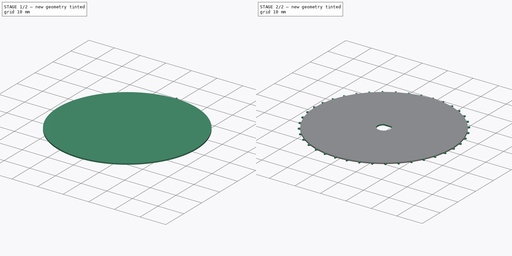
[diagram: build sequence overview — one tinted view per stage of 2, left to right]
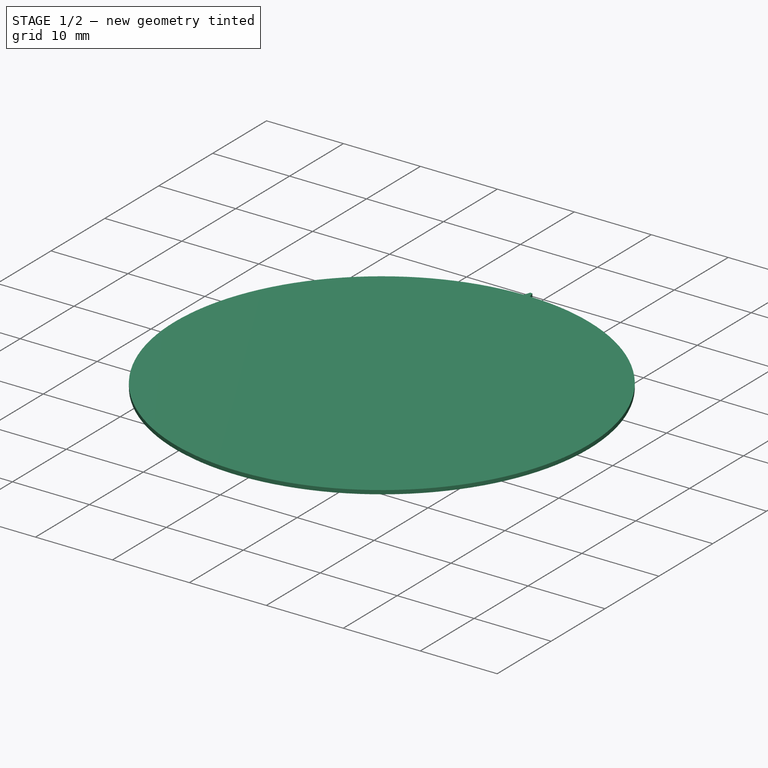
[diagram: stage 1 of 2 — iso view after this stage's code; geometry added in this stage tinted green]
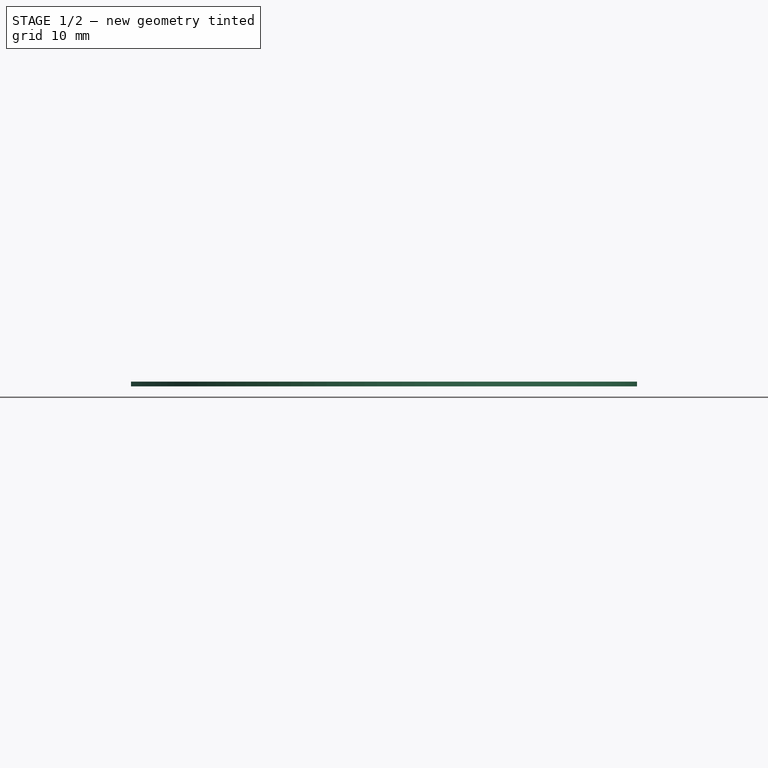
[diagram: stage 1 of 2 — front view after this stage's code; geometry added in this stage tinted green]
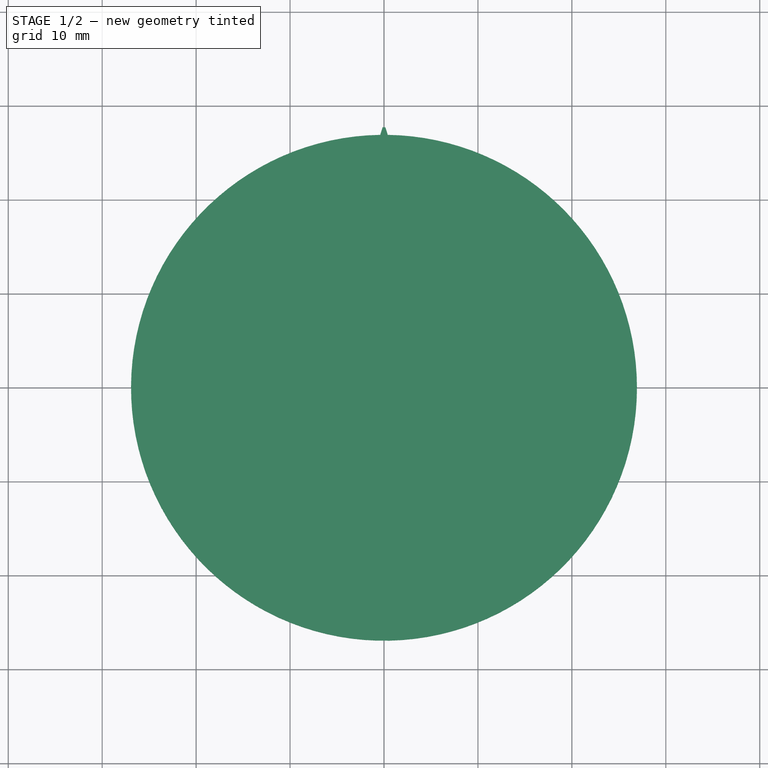
[diagram: stage 1 of 2 — top view after this stage's code; geometry added in this stage tinted green]
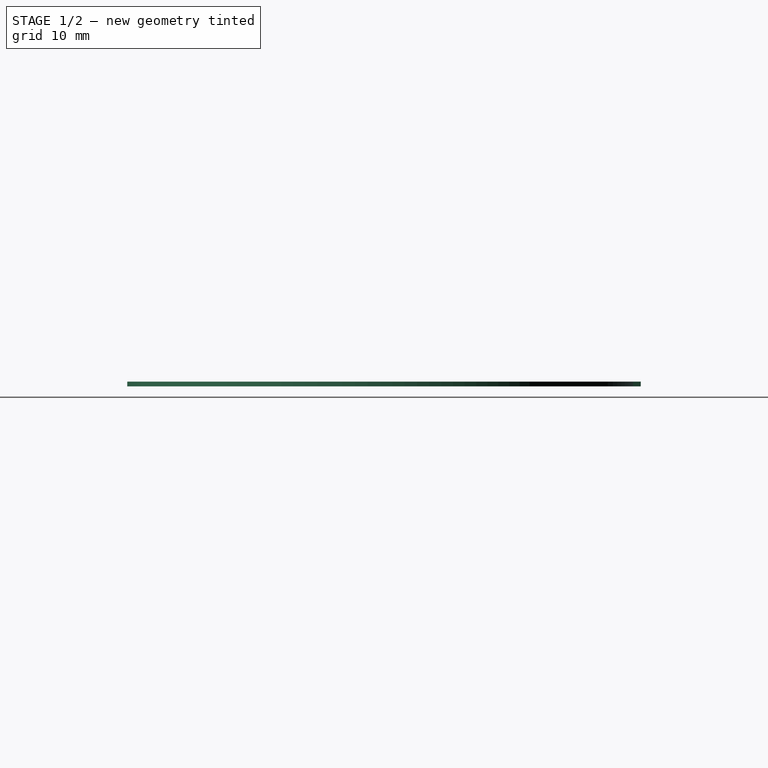
[diagram: stage 1 of 2 — right view after this stage's code; geometry added in this stage tinted green]
FCSTD DOCUMENT  (FreeCAD 0.20R29603 (Git))
Label: super8-cog
License: All rights reserved
LicenseURL: http://en.wikipedia.org/wiki/All_rights_reserved
objects: Sketcher::SketchObject×3, PartDesign::Pad×2, PartDesign::PolarPattern×1, PartDesign::Pocket×1, PartDesign::Body×1
note: 11 computed .brp shape members not serialized (recipe doc carries the construction recipe); baked Part::Feature solids carry a one-line shape summary decoded from their .brp

FEATURE [Sketcher::SketchObject] Sketch001
  FullyConstrained = true
  MapMode = 5
  Support = -> [XY_Plane]
  sketch-geometry (1):
    g0: Circle CenterX=0 CenterY=0 CenterZ=0 NormalX=0 NormalY=0 NormalZ=1 AngleXU=0 Radius=26.929
  constraints (2):
    c: Coincident(g0,g-1)
    c: Radius(g0) = 26.929
FEATURE [PartDesign::Pad] Pad  label="wheel"
  Direction = (0,0,1)
  Length = 0.5
  Length2 = 10
  Profile = -> Sketch001
  ReferenceAxis = -> Sketch001 [N_Axis]
  Type = 0
FEATURE [Sketcher::SketchObject] Sketch002
  FullyConstrained = true
  MapMode = 5
  Support = -> [XY_Plane]
  sketch-geometry (3):
    g0: ArcOfCircle CenterX=0 CenterY=0 CenterZ=0 NormalX=0 NormalY=0 NormalZ=1 AngleXU=0 Radius=2.5 StartAngle=2.2143 EndAngle=7.21048
    g1: GeomPoint X=0 Y=-2.5 Z=0
    g2: LineSegment StartX=-1.5 StartY=2 StartZ=0 EndX=1.5 EndY=2 EndZ=0
  constraints (8):
    c: Coincident(g0,g-1)
    c: Horizontal(g0,g0)
    c: PointOnObject(g1,g-2)
    c: PointOnObject(g1,g0)
    c: DistanceY(g1,g0) = 4.5
    c: Coincident(g2,g0)
    c: Coincident(g2,g0)
    c: Diameter(g0) = 5
FEATURE [Sketcher::SketchObject] Sketch003
  FullyConstrained = true
  MapMode = 5
  Support = -> [XY_Plane]
  sketch-geometry (6):
    g0: LineSegment StartX=1e-16 StartY=0 StartZ=0 EndX=-0.4 EndY=26.929 EndZ=0
    g1: LineSegment StartX=-0.4 StartY=26.929 StartZ=0 EndX=-0.15 EndY=27.729 EndZ=0
    g2: LineSegment StartX=-0.15 StartY=27.729 StartZ=0 EndX=0.15 EndY=27.729 EndZ=0
    g3: LineSegment StartX=0.15 StartY=27.729 StartZ=0 EndX=0.4 EndY=26.929 EndZ=0
    g4: LineSegment StartX=0.4 StartY=26.929 StartZ=0 EndX=1e-16 EndY=0 EndZ=0
    g5: GeomPoint X=0 Y=26.929 Z=0
  constraints (14):
    c: Coincident(g-1,g0)
    c: Coincident(g0,g1)
    c: Coincident(g1,g2)
    c: Coincident(g2,g3)
    c: Coincident(g3,g4)
    c: Coincident(g4,g0)
    c: Symmetric(g0,g3,g-2)
    c: DistanceX(g0,g3) = 0.8
    c: DistanceY(g0,g1) = 0.8
    c: Symmetric(g1,g2,g-2)
    c: DistanceX(g2,g2) = 0.3
    c: PointOnObject(g5,g-2)
    c: Horizontal(g0,g5)
    c: DistanceY(g0,g5) = 26.929
FEATURE [PartDesign::Pad] Pad001  label="tooth"
  BaseFeature = -> Pad
  Direction = (0,0,1)
  Length = 0.5
  Length2 = 10
  Profile = -> Sketch003
  ReferenceAxis = -> Sketch003 [N_Axis]
  Type = 0
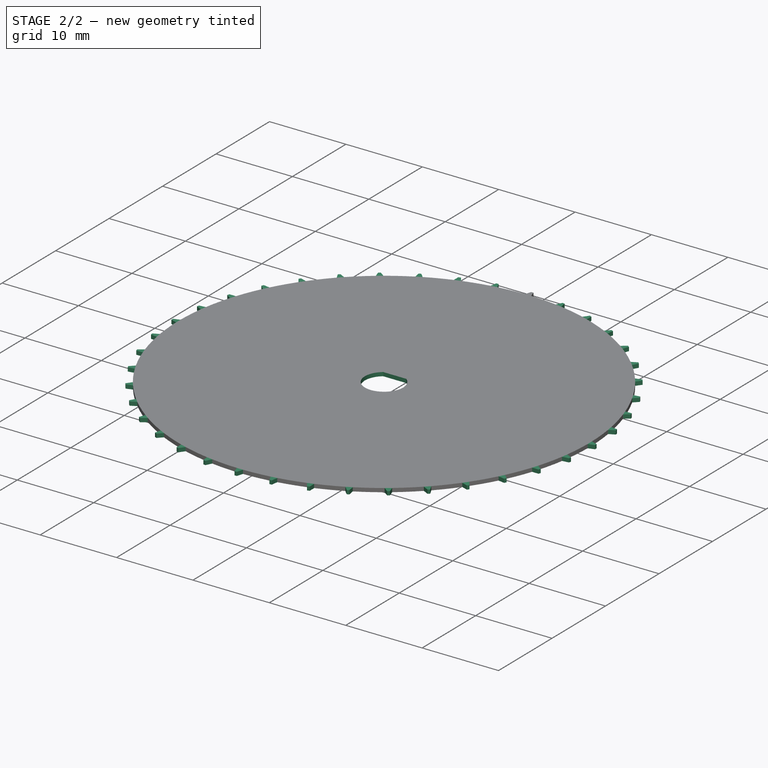
[diagram: stage 2 of 2 — iso view after this stage's code; geometry added in this stage tinted green]
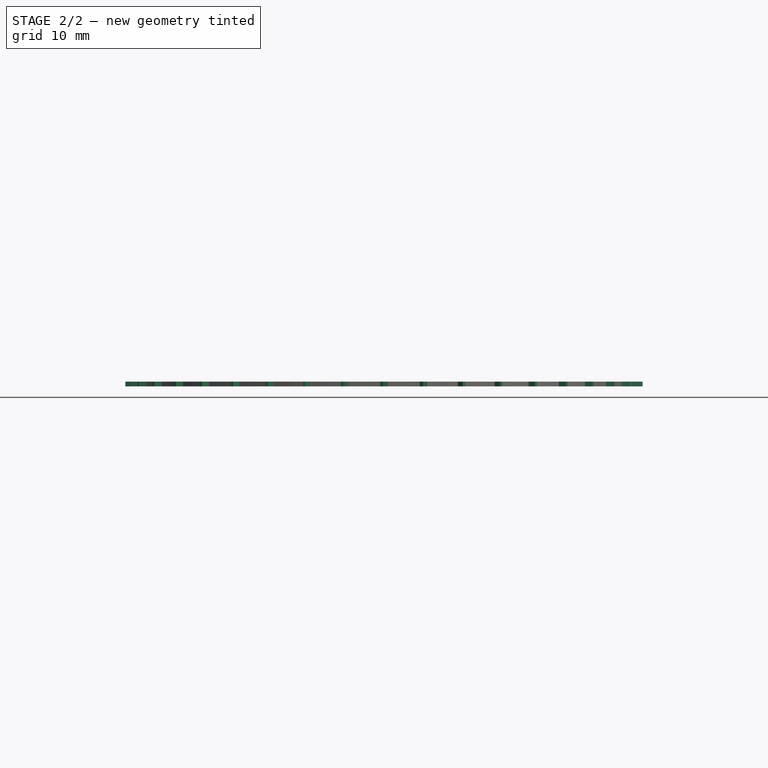
[diagram: stage 2 of 2 — front view after this stage's code; geometry added in this stage tinted green]
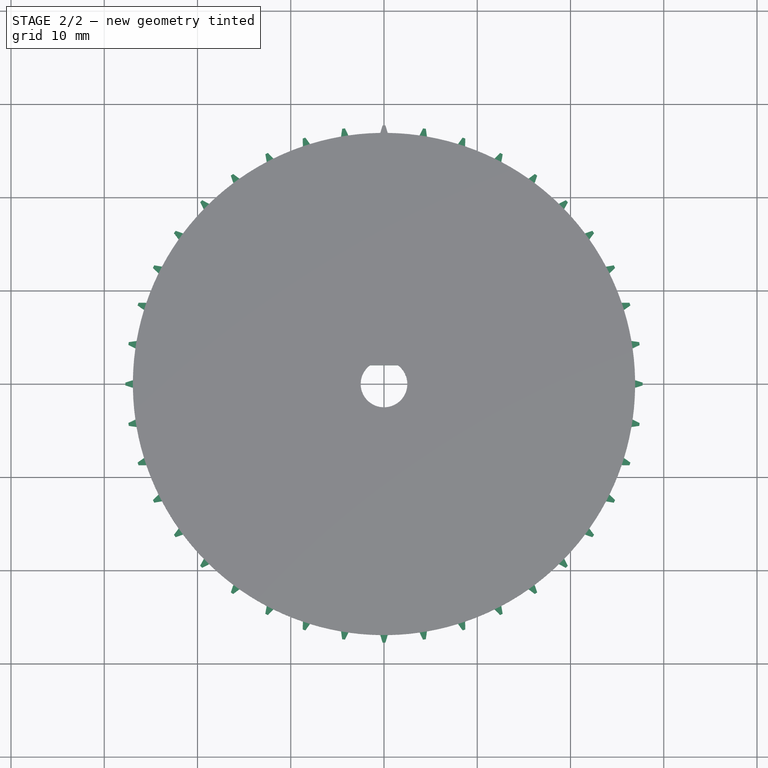
[diagram: stage 2 of 2 — top view after this stage's code; geometry added in this stage tinted green]
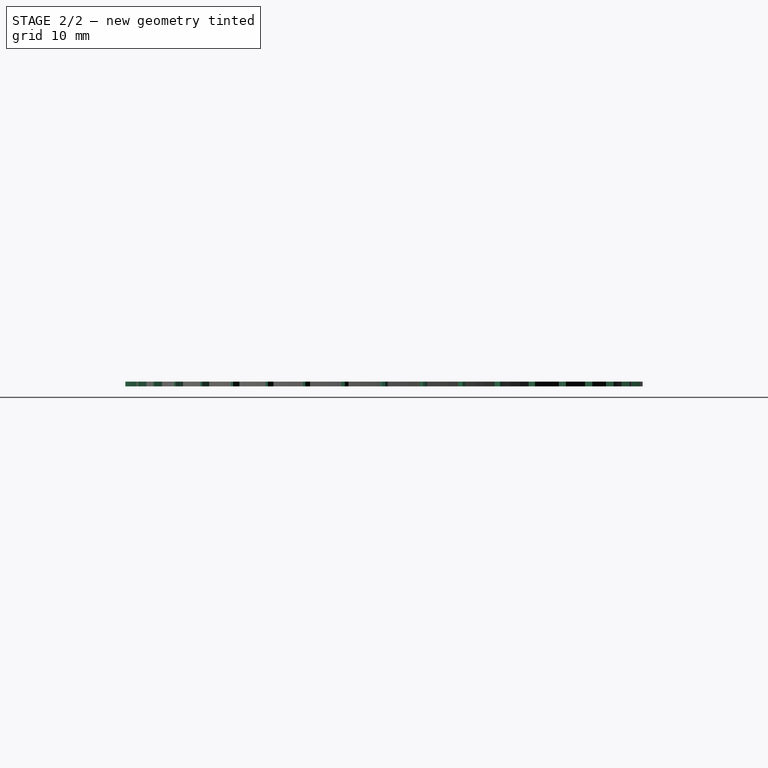
[diagram: stage 2 of 2 — right view after this stage's code; geometry added in this stage tinted green]
FEATURE [PartDesign::PolarPattern] PolarPattern  label="tooth-PolarPattern"
  Angle = 360
  Axis = -> Sketch003 [N_Axis]
  BaseFeature = -> Pad001
  Occurrences = 40
  Originals = -> [Pad001]
FEATURE [PartDesign::Pocket] Pocket  label="center hole"
  BaseFeature = -> PolarPattern
  Direction = (0,0,-1)
  Length = 5
  Length2 = 5
  Midplane = true
  Profile = -> Sketch002
  ReferenceAxis = -> Sketch002 [N_Axis]
  Type = 1
FEATURE [PartDesign::Body] Body
  Group = -> [Sketch001,Pad,Pad001,Sketch003,PolarPattern,Sketch002,Pocket]
  Origin = -> Origin
  Tip = -> Pocket
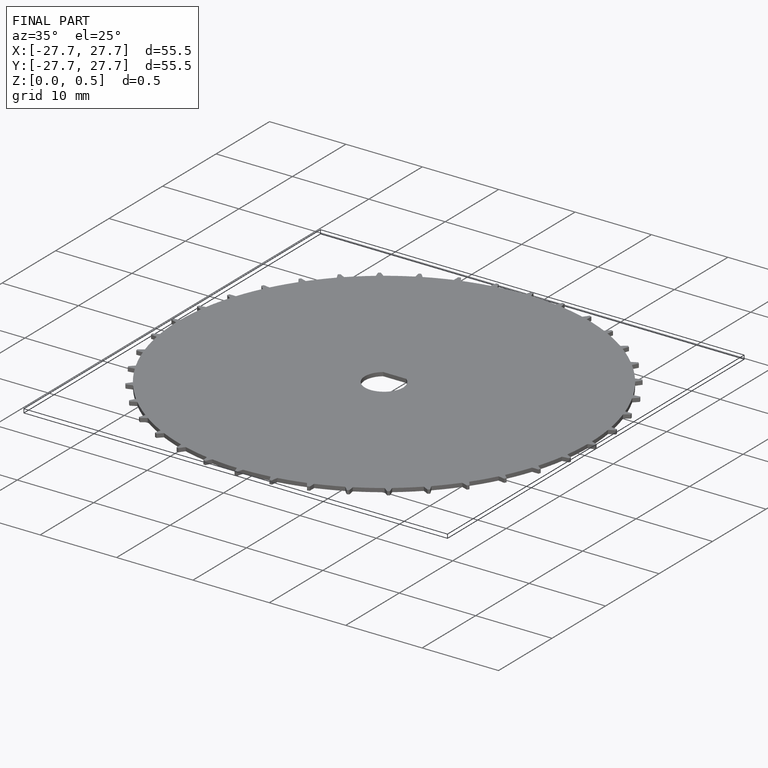
[diagram: finished part — iso view with bounding-box wireframe]
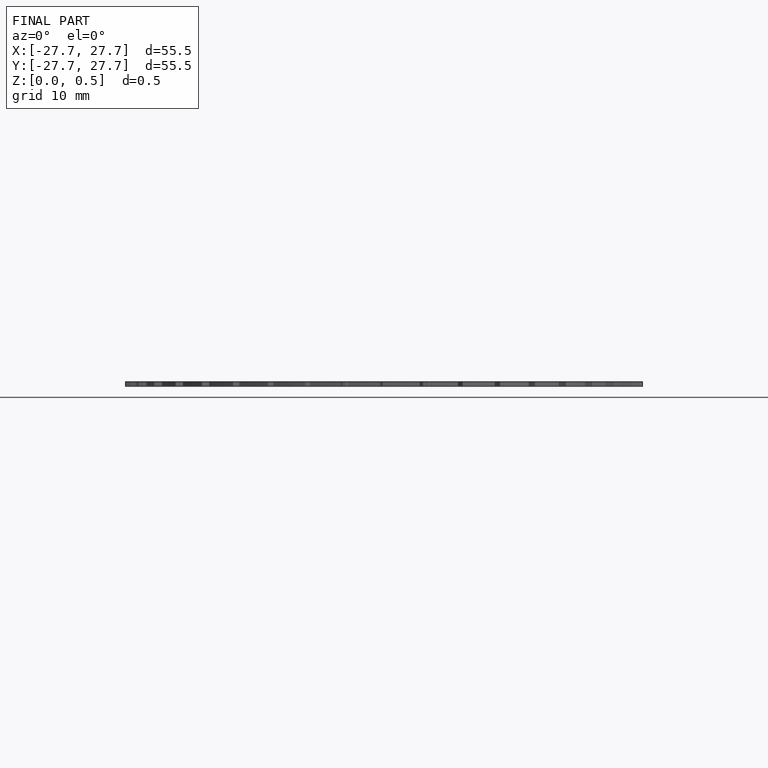
[diagram: finished part — front view with bounding-box wireframe]
